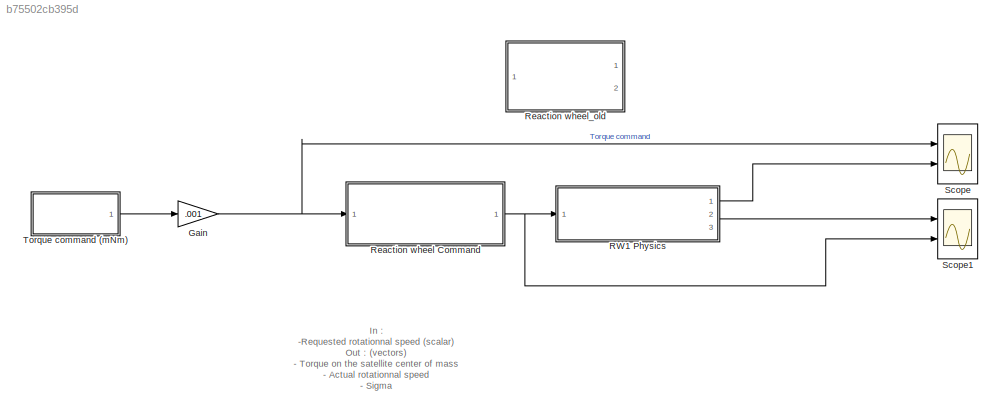
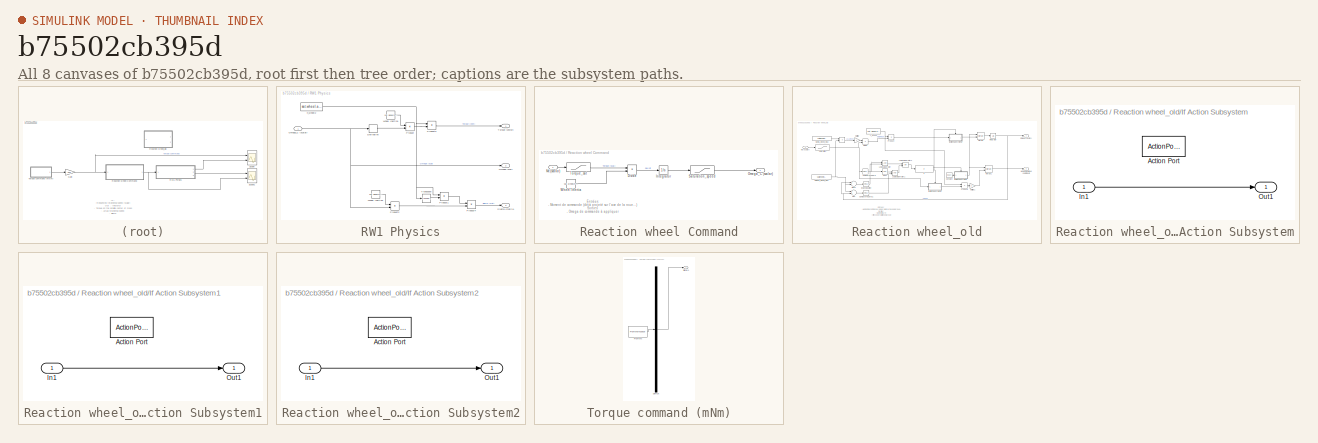
[diagram: thumbnail index - all 8 canvases of the model, root first then tree order]
MODEL slx_b75502cb395d
KIND model
CONFIG AbsTol = auto
CONFIG EnableMultiTasking = off
CONFIG FixedStep = auto
CONFIG MaxStep = auto
CONFIG MinStep = auto
CONFIG RelTol = 1e-3
CONFIG SampleTimeConstraint = Unconstrained
CONFIG Solver = VariableStepAuto
CONFIG SolverName = VariableStepAuto
CONFIG StartTime = 0.0
CONFIG StopTime = 20
WORKSPACE source: MAT-file member
WORKSPACE Omega_max = 0.5
BLOCK [Gain] Gain
  Gain = .001
  OutDataTypeStr = Inherit: Inherit via internal rule
  ParamDataTypeStr = Inherit: Inherit via internal rule
  SaturateOnIntegerOverflow = off
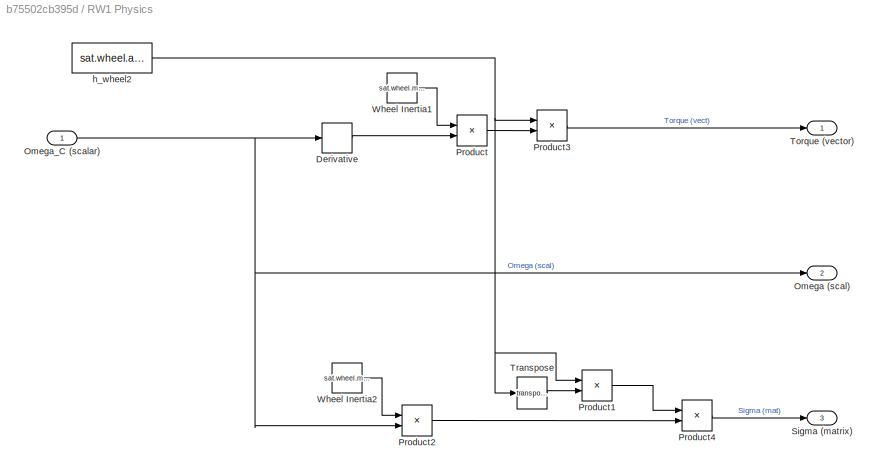
BLOCK [SubSystem] RW1 Physics
  Ports = [1, 3]
  RequestExecContextInheritance = off
BLOCK [Derivative] RW1 Physics/Derivative
BLOCK [Outport] RW1 Physics/Omega (scal)
  IconDisplay = Port number
  Port = 2
  VectorParamsAs1DForOutWhenUnconnected = on
BLOCK [Inport] RW1 Physics/Omega_C (scalar)
  IconDisplay = Port number
BLOCK [Product] RW1 Physics/Product
  InputSameDT = off
  OutDataTypeStr = Inherit: Inherit via internal rule
  Ports = [2, 1]
  RndMeth = Floor
  SaturateOnIntegerOverflow = off
BLOCK [Product] RW1 Physics/Product1
  InputSameDT = off
  Multiplication = Matrix(*)
  OutDataTypeStr = Inherit: Inherit via internal rule
  Ports = [2, 1]
  RndMeth = Floor
  SaturateOnIntegerOverflow = off
BLOCK [Product] RW1 Physics/Product2
  InputSameDT = off
  OutDataTypeStr = Inherit: Inherit via internal rule
  Ports = [2, 1]
  RndMeth = Floor
  SaturateOnIntegerOverflow = off
BLOCK [Product] RW1 Physics/Product3
  InputSameDT = off
  Multiplication = Matrix(*)
  OutDataTypeStr = Inherit: Inherit via internal rule
  Ports = [2, 1]
  RndMeth = Floor
  SaturateOnIntegerOverflow = off
BLOCK [Product] RW1 Physics/Product4
  InputSameDT = off
  OutDataTypeStr = Inherit: Inherit via internal rule
  Ports = [2, 1]
  RndMeth = Floor
  SaturateOnIntegerOverflow = off
BLOCK [Outport] RW1 Physics/Sigma (matrix)
  IconDisplay = Port number
  Port = 3
  VectorParamsAs1DForOutWhenUnconnected = on
BLOCK [Outport] RW1 Physics/Torque (vector)
  IconDisplay = Port number
  VectorParamsAs1DForOutWhenUnconnected = on
BLOCK [Math] RW1 Physics/Transpose
  Operator = transpose
  Ports = [1, 1]
BLOCK [Constant] RW1 Physics/Wheel Inertia1
  Value = sat.wheel.max_sigma/sat.wheel.max_speed
BLOCK [Constant] RW1 Physics/Wheel Inertia2
  Value = sat.wheel.max_sigma/sat.wheel.max_speed
BLOCK [Constant] RW1 Physics/h_wheel2
  Value = sat.wheel.axe1
BLOCK [SubSystem] Reaction wheel Command
  Ports = [1, 1]
  RequestExecContextInheritance = off
BLOCK [Product] Reaction wheel Command/Divide
  InputSameDT = off
  Inputs = */
  OutDataTypeStr = Inherit: Inherit via internal rule
  Ports = [2, 1]
  RndMeth = Floor
  SaturateOnIntegerOverflow = off
BLOCK [Integrator] Reaction wheel Command/Integrator
  Ports = [1, 1]
BLOCK [Inport] Reaction wheel Command/Mc (scalar)
  IconDisplay = Port number
BLOCK [Outport] Reaction wheel Command/Omega_C (scalar)
  IconDisplay = Port number
  VectorParamsAs1DForOutWhenUnconnected = on
BLOCK [Saturate] Reaction wheel Command/Saturation_speed
  InputPortMap = u0
  LowerLimit = - sat.wheel.max_speed
  Ports = [1, 1]
  UpperLimit = sat.wheel.max_speed
BLOCK [Saturate] Reaction wheel Command/Torque_sat
  InputPortMap = u0
  LowerLimit = - sat.wheel.max_torque
  Ports = [1, 1]
  UpperLimit = sat.wheel.max_torque
BLOCK [Constant] Reaction wheel Command/Wheel Inertia
  Value = sat.wheel.max_sigma/sat.wheel.max_speed
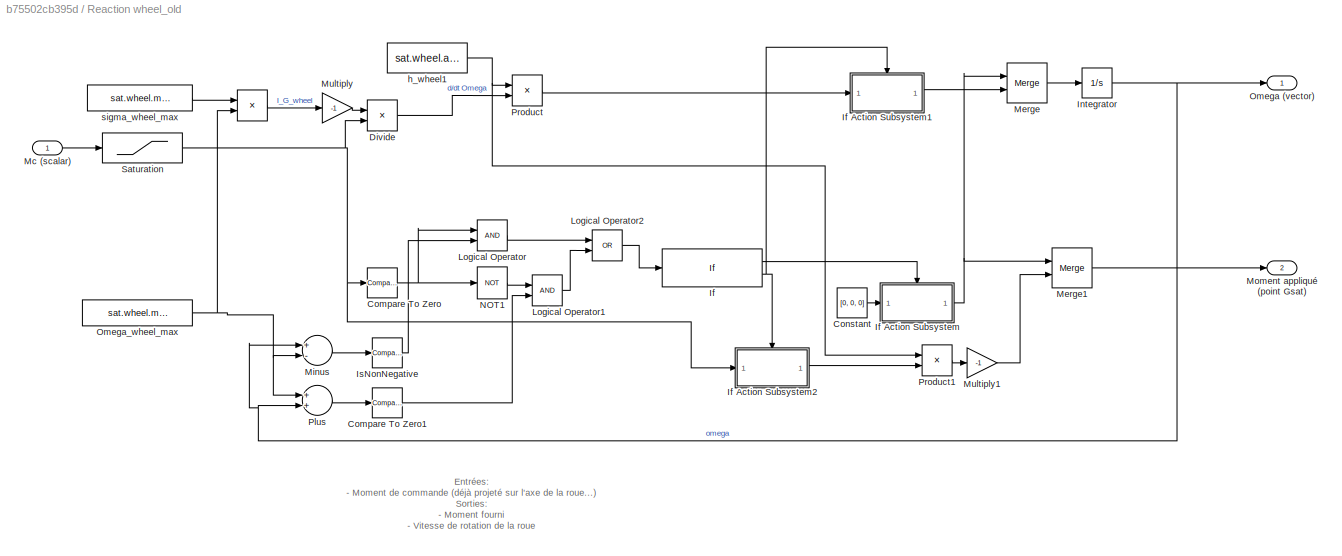
BLOCK [SubSystem] Reaction wheel_old
  Commented = on
  Ports = [1, 2]
  RequestExecContextInheritance = off
BLOCK [Product] Reaction wheel_old/ 
  InputSameDT = off
  Inputs = */
  OutDataTypeStr = Inherit: Inherit via internal rule
  Ports = [2, 1]
  RndMeth = Floor
  SaturateOnIntegerOverflow = off
BLOCK [Reference] Reaction wheel_old/Compare To Zero  REF=simulink/Logic and Bit
Operations/Compare
To Zero
  Ports = [1, 1]
  SourceBlock = simulink/Logic and Bit\nOperations/Compare\nTo Zero
  SourceProductBaseCode = SL
  SourceProductName = Simulink
  SourceType = Compare To Zero
BLOCK [Reference] Reaction wheel_old/Compare To Zero1  REF=simulink/Logic and Bit
Operations/Compare
To Zero
  Ports = [1, 1]
  SourceBlock = simulink/Logic and Bit\nOperations/Compare\nTo Zero
  SourceProductBaseCode = SL
  SourceProductName = Simulink
  SourceType = Compare To Zero
BLOCK [Constant] Reaction wheel_old/Constant
  Value = [0, 0, 0]
BLOCK [Product] Reaction wheel_old/Divide
  InputSameDT = off
  Inputs = /*
  OutDataTypeStr = Inherit: Inherit via internal rule
  Ports = [2, 1]
  RndMeth = Floor
  SaturateOnIntegerOverflow = off
BLOCK [If] Reaction wheel_old/If
  Ports = [1, 2]
BLOCK [SubSystem] Reaction wheel_old/If Action Subsystem
  Ports = [1, 1, 0, 0, 0, 0, 0, 1]
  RequestExecContextInheritance = off
  TreatAsAtomicUnit = on
BLOCK [ActionPort] Reaction wheel_old/If Action Subsystem/Action Port
BLOCK [Inport] Reaction wheel_old/If Action Subsystem/In1
  IconDisplay = Port number
BLOCK [Outport] Reaction wheel_old/If Action Subsystem/Out1
  IconDisplay = Port number
  VectorParamsAs1DForOutWhenUnconnected = on
BLOCK [SubSystem] Reaction wheel_old/If Action Subsystem1
  Ports = [1, 1, 0, 0, 0, 0, 0, 1]
  RequestExecContextInheritance = off
  TreatAsAtomicUnit = on
BLOCK [ActionPort] Reaction wheel_old/If Action Subsystem1/Action Port
BLOCK [Inport] Reaction wheel_old/If Action Subsystem1/In1
  IconDisplay = Port number
BLOCK [Outport] Reaction wheel_old/If Action Subsystem1/Out1
  IconDisplay = Port number
  VectorParamsAs1DForOutWhenUnconnected = on
BLOCK [SubSystem] Reaction wheel_old/If Action Subsystem2
  Ports = [1, 1, 0, 0, 0, 0, 0, 1]
  RequestExecContextInheritance = off
  TreatAsAtomicUnit = on
BLOCK [ActionPort] Reaction wheel_old/If Action Subsystem2/Action Port
BLOCK [Inport] Reaction wheel_old/If Action Subsystem2/In1
  IconDisplay = Port number
BLOCK [Outport] Reaction wheel_old/If Action Subsystem2/Out1
  IconDisplay = Port number
  VectorParamsAs1DForOutWhenUnconnected = on
BLOCK [Integrator] Reaction wheel_old/Integrator
  Ports = [1, 1]
BLOCK [Reference] Reaction wheel_old/IsNonNegative  REF=simulink/Logic and Bit
Operations/Compare
To Zero
  Ports = [1, 1]
  SourceBlock = simulink/Logic and Bit\nOperations/Compare\nTo Zero
  SourceProductBaseCode = SL
  SourceProductName = Simulink
  SourceType = Compare To Zero
BLOCK [Logic] Reaction wheel_old/Logical Operator
  AllPortsSameDT = off
  OutDataTypeStr = boolean
  Ports = [2, 1]
BLOCK [Logic] Reaction wheel_old/Logical Operator1
  AllPortsSameDT = off
  OutDataTypeStr = boolean
  Ports = [2, 1]
BLOCK [Logic] Reaction wheel_old/Logical Operator2
  AllPortsSameDT = off
  Operator = OR
  OutDataTypeStr = boolean
  Ports = [2, 1]
BLOCK [Inport] Reaction wheel_old/Mc (scalar)
  IconDisplay = Port number
BLOCK [Merge] Reaction wheel_old/Merge
  Ports = [2, 1]
BLOCK [Merge] Reaction wheel_old/Merge1
  Ports = [2, 1]
BLOCK [Sum] Reaction wheel_old/Minus
  InputSameDT = off
  Inputs = +-
  OutDataTypeStr = Inherit: Inherit via internal rule
  Ports = [2, 1]
  SaturateOnIntegerOverflow = off
BLOCK [Outport] Reaction wheel_old/Moment appliqué (point Gsat)
  IconDisplay = Port number
  Port = 2
  VectorParamsAs1DForOutWhenUnconnected = on
BLOCK [Gain] Reaction wheel_old/Multiply
  Gain = -1
  OutDataTypeStr = Inherit: Inherit via internal rule
  ParamDataTypeStr = Inherit: Inherit via internal rule
  SaturateOnIntegerOverflow = off
BLOCK [Gain] Reaction wheel_old/Multiply1
  Gain = -1
  OutDataTypeStr = Inherit: Inherit via internal rule
  ParamDataTypeStr = Inherit: Inherit via internal rule
  SaturateOnIntegerOverflow = off
BLOCK [Logic] Reaction wheel_old/NOT1
  AllPortsSameDT = off
  IconShape = distinctive
  Operator = NOT
  OutDataTypeStr = boolean
  Ports = [1, 1]
BLOCK [Outport] Reaction wheel_old/Omega (vector)
  IconDisplay = Port number
  VectorParamsAs1DForOutWhenUnconnected = on
BLOCK [Constant] Reaction wheel_old/Omega_wheel_max
  Value = sat.wheel.max_speed
BLOCK [Sum] Reaction wheel_old/Plus
  InputSameDT = off
  OutDataTypeStr = Inherit: Inherit via internal rule
  Ports = [2, 1]
  SaturateOnIntegerOverflow = off
BLOCK [Product] Reaction wheel_old/Product
  InputSameDT = off
  OutDataTypeStr = Inherit: Inherit via internal rule
  Ports = [2, 1]
  RndMeth = Floor
  SaturateOnIntegerOverflow = off
BLOCK [Product] Reaction wheel_old/Product1
  InputSameDT = off
  OutDataTypeStr = Inherit: Inherit via internal rule
  Ports = [2, 1]
  RndMeth = Floor
  SaturateOnIntegerOverflow = off
BLOCK [Saturate] Reaction wheel_old/Saturation
  InputPortMap = u0
  LowerLimit = - sat.wheel.max_torque
  Ports = [1, 1]
  UpperLimit = sat.wheel.max_torque
BLOCK [Constant] Reaction wheel_old/h_wheel1
  Value = sat.wheel.axe1
BLOCK [Constant] Reaction wheel_old/sigma_wheel_max
  Value = sat.wheel.max_sigma
BLOCK [Scope] Scope
  Floating = off
  NumInputPorts = 2
  Ports = [2]
  ScopeSpecificationString = Simulink.scopes.TimeScopeBlockCfg('CurrentConfiguration', extmgr.ConfigurationSet(extmgr.Configuration('Core','General UI',true),extmgr.Configuration('Core','Source UI',true),extmgr.Configuration('Sources','WiredSimulink',true),extmgr.Configuration('Visuals','Time Domain',true,'SerializedDisplays',{struct('MinYLimReal','-0.00024','MaxYLimReal','0.00213','YLabelReal','','MinYLimMag','0.00000','MaxY...<+1542ch>
BLOCK [Scope] Scope1
  Floating = off
  NumInputPorts = 2
  Ports = [2]
  ScopeSpecificationString = Simulink.scopes.TimeScopeBlockCfg('CurrentConfiguration', extmgr.ConfigurationSet(extmgr.Configuration('Core','General UI',true),extmgr.Configuration('Core','Source UI',true),extmgr.Configuration('Sources','WiredSimulink',true,'DataLoggingVariableName','ScopeData1'),extmgr.Configuration('Visuals','Time Domain',true,'SerializedDisplays',{struct('MinYLimReal','-78.53982','MaxYLimReal','706.85835','Y...<+1538ch>
BLOCK [SubSystem] Torque command (mNm)
  ClipboardFcn = sigbuilder_block('clipboard');
  CloseFcn = sigbuilder_block('close');
  ContinueFcn = sigbuilder_block('continue');
  CopyFcn = sigbuilder_block('copy');
  DeleteFcn = sigbuilder_block('delete');
  LoadFcn = sigbuilder_block('load');
  MaskHideContents = on
  ModelCloseFcn = sigbuilder_block('modelClose');
  NameChangeFcn = sigbuilder_block('namechange');
  OpenFcn = sigbuilder_block('open',[437.6 199.2 604.15 400 ]);
  PauseFcn = sigbuilder_block('pause');
  Ports = [0, 1]
  PreSaveFcn = sigbuilder_block('preSave');
  RequestExecContextInheritance = off
  StartFcn = sigbuilder_block('start');
  StopFcn = sigbuilder_block('stop');
  Tag = STV Subsys
BLOCK [Demux] Torque command (mNm)/Demux
  Outputs = 1
  Ports = [1, 1]
  Tag = STV Demux
BLOCK [FromWorkspace] Torque command (mNm)/FromWs
  SampleTime = 0
  Tag = STV FromWs
  VariableName = tuvar
  ZeroCross = on
BLOCK [Outport] Torque command (mNm)/Signal 1
  IconDisplay = Port number
  Tag = STV Outport
ANNOTATION (root): In : -Requested rotationnal speed (scalar) Out : (vectors) - Torque on the satellite center of mass - Actual rotationnal speed - Sigma Currently sigma and torque are expressed at the center of the wheel Current scheme Takes into account : - The wheel staturation (max speed) -The motor saturation (max torque) The saturation is computed into the command block. The physic block assumes that the omega...<+101ch>
ANNOTATION Reaction wheel Command: Entrées: - Moment de commande (déjà projeté sur l'axe de la roue...) Sorties: - Omega de commande à appliquer
ANNOTATION Reaction wheel_old: Entrées: - Moment de commande (déjà projeté sur l'axe de la roue...) Sorties: - Moment fourni - Vitesse de rotation de la roue Fonctionnement actuel: Prend en compte : - la saturation des roues (modèle simple de limitation) - Le couple maximal de la roue On regarde si la vitesse de rotation ne dépasse pas une valeur max (dépend du modèle de roue) Si ça dépasse, on renvoie 0 et la roue n'accélère p...<+85ch>
NET Gain:1 -> Reaction wheel Command:1, Scope:1
LINE RW1 Physics/Derivative:1 -> RW1 Physics/Product:2
NET RW1 Physics/Omega_C (scalar):1 -> RW1 Physics/Derivative:1, RW1 Physics/Omega (scal):1, RW1 Physics/Product2:2
LINE RW1 Physics/Product1:1 -> RW1 Physics/Product4:1
LINE RW1 Physics/Product2:1 -> RW1 Physics/Product4:2
LINE RW1 Physics/Product3:1 -> RW1 Physics/Torque (vector):1
LINE RW1 Physics/Product4:1 -> RW1 Physics/Sigma (matrix):1
LINE RW1 Physics/Product:1 -> RW1 Physics/Product3:2
LINE RW1 Physics/Transpose:1 -> RW1 Physics/Product1:2
LINE RW1 Physics/Wheel Inertia1:1 -> RW1 Physics/Product:1
LINE RW1 Physics/Wheel Inertia2:1 -> RW1 Physics/Product2:1
NET RW1 Physics/h_wheel2:1 -> RW1 Physics/Product1:1, RW1 Physics/Product3:1, RW1 Physics/Transpose:1
LINE RW1 Physics:1 -> Scope:2
LINE RW1 Physics:2 -> Scope1:1
LINE Reaction wheel Command/Divide:1 -> Reaction wheel Command/Integrator:1
LINE Reaction wheel Command/Integrator:1 -> Reaction wheel Command/Saturation_speed:1
LINE Reaction wheel Command/Mc (scalar):1 -> Reaction wheel Command/Torque_sat:1
LINE Reaction wheel Command/Saturation_speed:1 -> Reaction wheel Command/Omega_C (scalar):1
LINE Reaction wheel Command/Torque_sat:1 -> Reaction wheel Command/Divide:1
LINE Reaction wheel Command/Wheel Inertia:1 -> Reaction wheel Command/Divide:2
NET Reaction wheel Command:1 -> RW1 Physics:1, Scope1:2
LINE Reaction wheel_old/ :1 -> Reaction wheel_old/Multiply:1
LINE Reaction wheel_old/Compare To Zero1:1 -> Reaction wheel_old/Logical Operator1:2
NET Reaction wheel_old/Compare To Zero:1 -> Reaction wheel_old/Logical Operator:1, Reaction wheel_old/NOT1:1
LINE Reaction wheel_old/Constant:1 -> Reaction wheel_old/If Action Subsystem:1
LINE Reaction wheel_old/Divide:1 -> Reaction wheel_old/Product:2
LINE Reaction wheel_old/If Action Subsystem/In1:1 -> Reaction wheel_old/If Action Subsystem/Out1:1
LINE Reaction wheel_old/If Action Subsystem1/In1:1 -> Reaction wheel_old/If Action Subsystem1/Out1:1
LINE Reaction wheel_old/If Action Subsystem1:1 -> Reaction wheel_old/Merge:2
LINE Reaction wheel_old/If Action Subsystem2/In1:1 -> Reaction wheel_old/If Action Subsystem2/Out1:1
LINE Reaction wheel_old/If Action Subsystem2:1 -> Reaction wheel_old/Product1:2
NET Reaction wheel_old/If Action Subsystem:1 -> Reaction wheel_old/Merge1:1, Reaction wheel_old/Merge:1
LINE Reaction wheel_old/If:1 -> Reaction wheel_old/If Action Subsystem:ifaction
NET Reaction wheel_old/If:2 -> Reaction wheel_old/If Action Subsystem1:ifaction, Reaction wheel_old/If Action Subsystem2:ifaction
NET Reaction wheel_old/Integrator:1 -> Reaction wheel_old/Minus:1, Reaction wheel_old/Omega (vector):1, Reaction wheel_old/Plus:2
LINE Reaction wheel_old/IsNonNegative:1 -> Reaction wheel_old/Logical Operator:2
LINE Reaction wheel_old/Logical Operator1:1 -> Reaction wheel_old/Logical Operator2:2
LINE Reaction wheel_old/Logical Operator2:1 -> Reaction wheel_old/If:1
LINE Reaction wheel_old/Logical Operator:1 -> Reaction wheel_old/Logical Operator2:1
LINE Reaction wheel_old/Mc (scalar):1 -> Reaction wheel_old/Saturation:1
LINE Reaction wheel_old/Merge1:1 -> Reaction wheel_old/Moment appliqué (point Gsat):1
LINE Reaction wheel_old/Merge:1 -> Reaction wheel_old/Integrator:1
LINE Reaction wheel_old/Minus:1 -> Reaction wheel_old/IsNonNegative:1
LINE Reaction wheel_old/Multiply1:1 -> Reaction wheel_old/Merge1:2
LINE Reaction wheel_old/Multiply:1 -> Reaction wheel_old/Divide:1
LINE Reaction wheel_old/NOT1:1 -> Reaction wheel_old/Logical Operator1:1
NET Reaction wheel_old/Omega_wheel_max:1 -> Reaction wheel_old/ :2, Reaction wheel_old/Minus:2, Reaction wheel_old/Plus:1
LINE Reaction wheel_old/Plus:1 -> Reaction wheel_old/Compare To Zero1:1
LINE Reaction wheel_old/Product1:1 -> Reaction wheel_old/Multiply1:1
LINE Reaction wheel_old/Product:1 -> Reaction wheel_old/If Action Subsystem1:1
NET Reaction wheel_old/Saturation:1 -> Reaction wheel_old/Compare To Zero:1, Reaction wheel_old/Divide:2, Reaction wheel_old/If Action Subsystem2:1
NET Reaction wheel_old/h_wheel1:1 -> Reaction wheel_old/Product1:1, Reaction wheel_old/Product:1
LINE Reaction wheel_old/sigma_wheel_max:1 -> Reaction wheel_old/ :1
LINE Torque command (mNm):1 -> Gain:1
note: NET lines group one-source signal fan-out (src -> all destinations, sorted); 1:1 wires keep LINE
